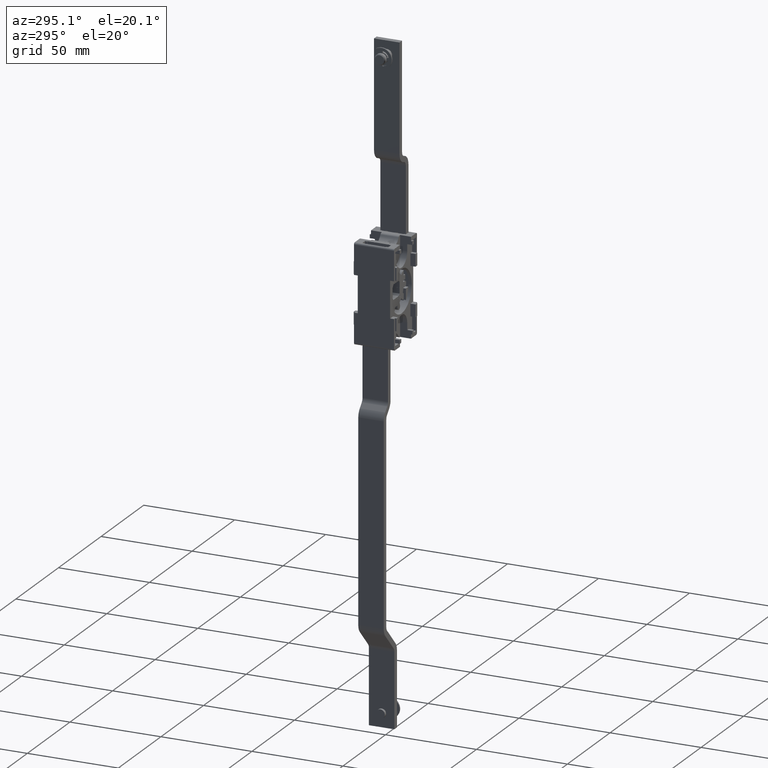
[diagram: clean part render]
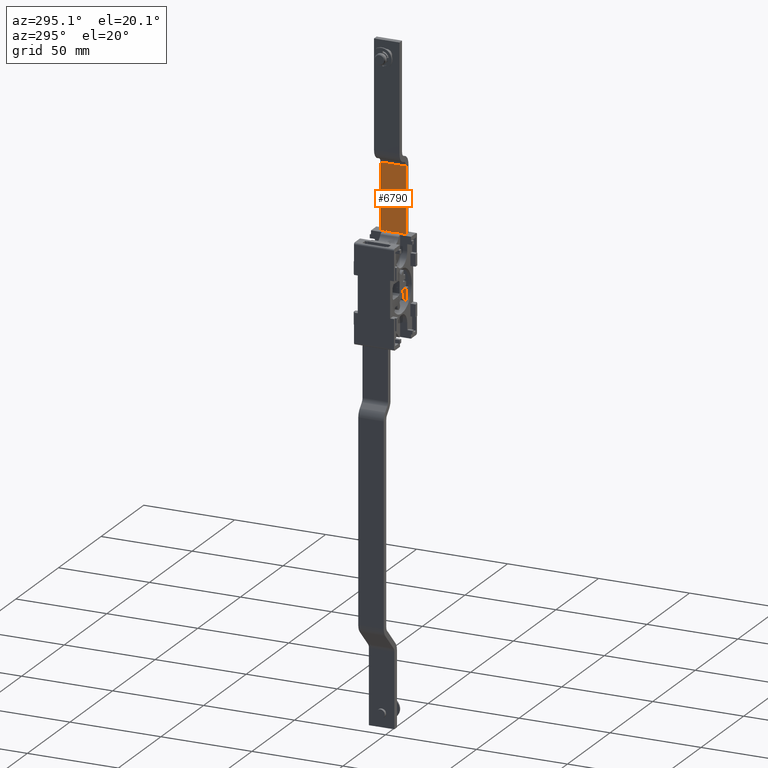
[diagram: same view with one face highlighted and labeled with its STEP entity id]
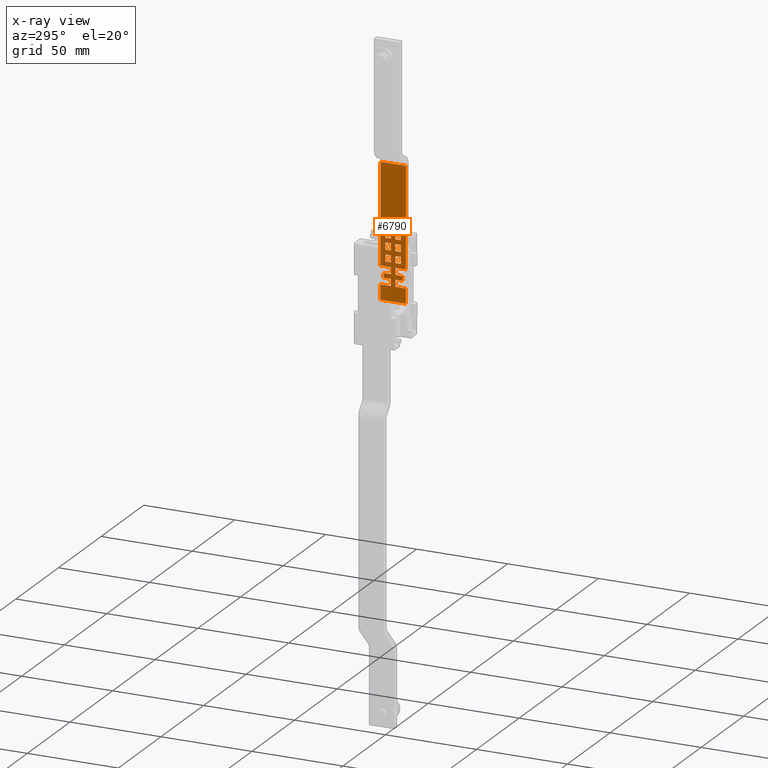
[diagram: x-ray of the same camera — body ghosted, the highlighted face saturated]
A machine part, auxiliary view. The second image highlights one B-rep face of the part: STEP entity #6790.
The next image is the same camera in x-ray: the body ghosted, the highlighted face saturated — about 0% of this face is hidden behind the body in this view.
In plain terms, the highlighted face is a freeform B-spline surface patch.
Its self-contained STEP definition (entity closure, byte-faithful):
#4746=CARTESIAN_POINT('',(8.900000041247779,1.249999999999972,10.660006222166400));
#4747=VERTEX_POINT('',#4746);
#4753=CARTESIAN_POINT('',(8.900000041247800,1.250000000000000,14.460006222166401));
#4754=VERTEX_POINT('',#4753);
#4755=CARTESIAN_POINT('',(8.900000041247800,1.250000000000000,14.460006222166401));
#4756=CARTESIAN_POINT('',(8.900000041247779,1.249999999999972,10.660006222166400));
#4757=QUASI_UNIFORM_CURVE('',1,(#4755,#4756),.UNSPECIFIED.,.F.,.U.);
#4758=EDGE_CURVE('',#4754,#4747,#4757,.T.);
#4781=CARTESIAN_POINT('',(8.900000041247800,4.250000000000000,14.460006222166401));
#4782=VERTEX_POINT('',#4781);
#4783=CARTESIAN_POINT('',(8.900000041247800,4.250000000000000,14.460006222166401));
#4784=CARTESIAN_POINT('',(8.900000041247800,1.250000000000000,14.460006222166401));
#4785=QUASI_UNIFORM_CURVE('',1,(#4783,#4784),.UNSPECIFIED.,.F.,.U.);
#4786=EDGE_CURVE('',#4782,#4754,#4785,.T.);
#4809=CARTESIAN_POINT('',(8.900000041247800,4.250000000000000,10.660006222166400));
#4810=VERTEX_POINT('',#4809);
#4811=CARTESIAN_POINT('',(8.900000041247800,4.250000000000000,10.660006222166400));
#4812=CARTESIAN_POINT('',(8.900000041247800,4.250000000000000,14.460006222166401));
#4813=QUASI_UNIFORM_CURVE('',1,(#4811,#4812),.UNSPECIFIED.,.F.,.U.);
#4814=EDGE_CURVE('',#4810,#4782,#4813,.T.);
#4835=CARTESIAN_POINT('',(8.900000041247779,1.249999999999972,10.660006222166400));
#4836=CARTESIAN_POINT('',(8.900000041247800,4.250000000000000,10.660006222166400));
#4837=QUASI_UNIFORM_CURVE('',1,(#4835,#4836),.UNSPECIFIED.,.F.,.U.);
#4838=EDGE_CURVE('',#4747,#4810,#4837,.T.);
#4858=CARTESIAN_POINT('',(8.900000041247779,-4.250000000000000,10.660006222166400));
#4859=VERTEX_POINT('',#4858);
#4865=CARTESIAN_POINT('',(8.900000041247800,-4.250000000000000,14.460006222166401));
#4866=VERTEX_POINT('',#4865);
#4867=CARTESIAN_POINT('',(8.900000041247779,-4.250000000000000,10.660006222166400));
#4868=CARTESIAN_POINT('',(8.900000041247800,-4.250000000000000,14.460006222166401));
#4869=QUASI_UNIFORM_CURVE('',1,(#4867,#4868),.UNSPECIFIED.,.F.,.U.);
#4870=EDGE_CURVE('',#4859,#4866,#4869,.T.);
#4892=CARTESIAN_POINT('',(8.900000041247800,-1.250000000000000,10.660006222166400));
#4893=VERTEX_POINT('',#4892);
#4899=CARTESIAN_POINT('',(8.900000041247800,-1.250000000000000,10.660006222166400));
#4900=CARTESIAN_POINT('',(8.900000041247779,-4.250000000000000,10.660006222166400));
#4901=QUASI_UNIFORM_CURVE('',1,(#4899,#4900),.UNSPECIFIED.,.F.,.U.);
#4902=EDGE_CURVE('',#4893,#4859,#4901,.T.);
#4920=CARTESIAN_POINT('',(8.900000041247800,-1.250000000000000,14.460006222166401));
#4921=VERTEX_POINT('',#4920);
#4927=CARTESIAN_POINT('',(8.900000041247800,-1.250000000000000,14.460006222166401));
#4928=CARTESIAN_POINT('',(8.900000041247800,-1.250000000000000,10.660006222166400));
#4929=QUASI_UNIFORM_CURVE('',1,(#4927,#4928),.UNSPECIFIED.,.F.,.U.);
#4930=EDGE_CURVE('',#4921,#4893,#4929,.T.);
#4947=CARTESIAN_POINT('',(8.900000041247800,-4.250000000000000,14.460006222166401));
#4948=CARTESIAN_POINT('',(8.900000041247800,-1.250000000000000,14.460006222166401));
#4949=QUASI_UNIFORM_CURVE('',1,(#4947,#4948),.UNSPECIFIED.,.F.,.U.);
#4950=EDGE_CURVE('',#4866,#4921,#4949,.T.);
#4970=CARTESIAN_POINT('',(8.900000041247779,-4.250000000000000,20.740006222166400));
#4971=VERTEX_POINT('',#4970);
#4977=CARTESIAN_POINT('',(8.900000041247800,-1.250000000000000,20.740006222166400));
#4978=VERTEX_POINT('',#4977);
#4979=CARTESIAN_POINT('',(8.900000041247800,-1.250000000000000,20.740006222166400));
#4980=CARTESIAN_POINT('',(8.900000041247779,-4.250000000000000,20.740006222166400));
#4981=QUASI_UNIFORM_CURVE('',1,(#4979,#4980),.UNSPECIFIED.,.F.,.U.);
#4982=EDGE_CURVE('',#4978,#4971,#4981,.T.);
#5005=CARTESIAN_POINT('',(8.900000041247800,-1.250000000000000,16.940006222166399));
#5006=VERTEX_POINT('',#5005);
#5007=CARTESIAN_POINT('',(8.900000041247800,-1.250000000000000,16.940006222166399));
#5008=CARTESIAN_POINT('',(8.900000041247800,-1.250000000000000,20.740006222166400));
#5009=QUASI_UNIFORM_CURVE('',1,(#5007,#5008),.UNSPECIFIED.,.F.,.U.);
#5010=EDGE_CURVE('',#5006,#4978,#5009,.T.);
#5033=CARTESIAN_POINT('',(8.900000041247800,-4.250000000000000,16.940006222166399));
#5034=VERTEX_POINT('',#5033);
#5035=CARTESIAN_POINT('',(8.900000041247800,-4.250000000000000,16.940006222166399));
#5036=CARTESIAN_POINT('',(8.900000041247800,-1.250000000000000,16.940006222166399));
#5037=QUASI_UNIFORM_CURVE('',1,(#5035,#5036),.UNSPECIFIED.,.F.,.U.);
#5038=EDGE_CURVE('',#5034,#5006,#5037,.T.);
#5059=CARTESIAN_POINT('',(8.900000041247779,-4.250000000000000,20.740006222166400));
#5060=CARTESIAN_POINT('',(8.900000041247800,-4.250000000000000,16.940006222166399));
#5061=QUASI_UNIFORM_CURVE('',1,(#5059,#5060),.UNSPECIFIED.,.F.,.U.);
#5062=EDGE_CURVE('',#4971,#5034,#5061,.T.);
#5082=CARTESIAN_POINT('',(8.900000041247779,-4.250000000000000,27.020006222166401));
#5083=VERTEX_POINT('',#5082);
#5089=CARTESIAN_POINT('',(8.900000041247800,-1.250000000000000,27.020006222166401));
#5090=VERTEX_POINT('',#5089);
#5091=CARTESIAN_POINT('',(8.900000041247800,-1.250000000000000,27.020006222166401));
#5092=CARTESIAN_POINT('',(8.900000041247779,-4.250000000000000,27.020006222166401));
#5093=QUASI_UNIFORM_CURVE('',1,(#5091,#5092),.UNSPECIFIED.,.F.,.U.);
#5094=EDGE_CURVE('',#5090,#5083,#5093,.T.);
#5117=CARTESIAN_POINT('',(8.900000041247800,-1.250000000000000,23.220006222166401));
#5118=VERTEX_POINT('',#5117);
#5119=CARTESIAN_POINT('',(8.900000041247800,-1.250000000000000,23.220006222166401));
#5120=CARTESIAN_POINT('',(8.900000041247800,-1.250000000000000,27.020006222166401));
#5121=QUASI_UNIFORM_CURVE('',1,(#5119,#5120),.UNSPECIFIED.,.F.,.U.);
#5122=EDGE_CURVE('',#5118,#5090,#5121,.T.);
#5145=CARTESIAN_POINT('',(8.900000041247800,-4.250000000000000,23.220006222166401));
#5146=VERTEX_POINT('',#5145);
#5147=CARTESIAN_POINT('',(8.900000041247800,-4.250000000000000,23.220006222166401));
#5148=CARTESIAN_POINT('',(8.900000041247800,-1.250000000000000,23.220006222166401));
#5149=QUASI_UNIFORM_CURVE('',1,(#5147,#5148),.UNSPECIFIED.,.F.,.U.);
#5150=EDGE_CURVE('',#5146,#5118,#5149,.T.);
#5171=CARTESIAN_POINT('',(8.900000041247779,-4.250000000000000,27.020006222166401));
#5172=CARTESIAN_POINT('',(8.900000041247800,-4.250000000000000,23.220006222166401));
#5173=QUASI_UNIFORM_CURVE('',1,(#5171,#5172),.UNSPECIFIED.,.F.,.U.);
#5174=EDGE_CURVE('',#5083,#5146,#5173,.T.);
#5194=CARTESIAN_POINT('',(8.900000041247779,1.250000000000084,27.020006222166401));
#5195=VERTEX_POINT('',#5194);
#5201=CARTESIAN_POINT('',(8.900000041247800,4.250000000000000,27.020006222166401));
#5202=VERTEX_POINT('',#5201);
#5203=CARTESIAN_POINT('',(8.900000041247779,1.250000000000084,27.020006222166401));
#5204=CARTESIAN_POINT('',(8.900000041247800,4.250000000000000,27.020006222166401));
#5205=QUASI_UNIFORM_CURVE('',1,(#5203,#5204),.UNSPECIFIED.,.F.,.U.);
#5206=EDGE_CURVE('',#5195,#5202,#5205,.T.);
#5228=CARTESIAN_POINT('',(8.900000041247800,1.250000000000000,23.220006222166401));
#5229=VERTEX_POINT('',#5228);
#5235=CARTESIAN_POINT('',(8.900000041247800,1.250000000000000,23.220006222166401));
#5236=CARTESIAN_POINT('',(8.900000041247779,1.250000000000084,27.020006222166401));
#5237=QUASI_UNIFORM_CURVE('',1,(#5235,#5236),.UNSPECIFIED.,.F.,.U.);
#5238=EDGE_CURVE('',#5229,#5195,#5237,.T.);
#5256=CARTESIAN_POINT('',(8.900000041247800,4.250000000000000,23.220006222166401));
#5257=VERTEX_POINT('',#5256);
#5263=CARTESIAN_POINT('',(8.900000041247800,4.250000000000000,23.220006222166401));
#5264=CARTESIAN_POINT('',(8.900000041247800,1.250000000000000,23.220006222166401));
#5265=QUASI_UNIFORM_CURVE('',1,(#5263,#5264),.UNSPECIFIED.,.F.,.U.);
#5266=EDGE_CURVE('',#5257,#5229,#5265,.T.);
#5283=CARTESIAN_POINT('',(8.900000041247800,4.250000000000000,27.020006222166401));
#5284=CARTESIAN_POINT('',(8.900000041247800,4.250000000000000,23.220006222166401));
#5285=QUASI_UNIFORM_CURVE('',1,(#5283,#5284),.UNSPECIFIED.,.F.,.U.);
#5286=EDGE_CURVE('',#5202,#5257,#5285,.T.);
#5306=CARTESIAN_POINT('',(8.900000041247779,4.250000000000000,16.940006222166399));
#5307=VERTEX_POINT('',#5306);
#5313=CARTESIAN_POINT('',(8.900000041247800,1.250000000000000,16.940006222166399));
#5314=VERTEX_POINT('',#5313);
#5315=CARTESIAN_POINT('',(8.900000041247779,4.250000000000000,16.940006222166399));
#5316=CARTESIAN_POINT('',(8.900000041247800,1.250000000000000,16.940006222166399));
#5317=QUASI_UNIFORM_CURVE('',1,(#5315,#5316),.UNSPECIFIED.,.F.,.U.);
#5318=EDGE_CURVE('',#5307,#5314,#5317,.T.);
#5340=CARTESIAN_POINT('',(8.900000041247800,4.250000000000000,20.740006222166400));
#5341=VERTEX_POINT('',#5340);
#5347=CARTESIAN_POINT('',(8.900000041247800,4.250000000000000,20.740006222166400));
#5348=CARTESIAN_POINT('',(8.900000041247779,4.250000000000000,16.940006222166399));
#5349=QUASI_UNIFORM_CURVE('',1,(#5347,#5348),.UNSPECIFIED.,.F.,.U.);
#5350=EDGE_CURVE('',#5341,#5307,#5349,.T.);
#5368=CARTESIAN_POINT('',(8.900000041247800,1.250000000000000,20.740006222166400));
#5369=VERTEX_POINT('',#5368);
#5375=CARTESIAN_POINT('',(8.900000041247800,1.250000000000000,20.740006222166400));
#5376=CARTESIAN_POINT('',(8.900000041247800,4.250000000000000,20.740006222166400));
#5377=QUASI_UNIFORM_CURVE('',1,(#5375,#5376),.UNSPECIFIED.,.F.,.U.);
#5378=EDGE_CURVE('',#5369,#5341,#5377,.T.);
#5395=CARTESIAN_POINT('',(8.900000041247800,1.250000000000000,16.940006222166399));
#5396=CARTESIAN_POINT('',(8.900000041247800,1.250000000000000,20.740006222166400));
#5397=QUASI_UNIFORM_CURVE('',1,(#5395,#5396),.UNSPECIFIED.,.F.,.U.);
#5398=EDGE_CURVE('',#5314,#5369,#5397,.T.);
#5418=CARTESIAN_POINT('',(8.900000041247800,-1.250000000000000,-1.899993777833595));
#5419=VERTEX_POINT('',#5418);
#5425=CARTESIAN_POINT('',(8.900000041247779,-7.000000332482220,-1.899993777833595));
#5426=VERTEX_POINT('',#5425);
#5427=CARTESIAN_POINT('',(8.900000041247800,-1.250000000000000,-1.899993777833595));
#5428=CARTESIAN_POINT('',(8.900000041247779,-7.000000332482220,-1.899993777833595));
#5429=QUASI_UNIFORM_CURVE('',1,(#5427,#5428),.UNSPECIFIED.,.F.,.U.);
#5430=EDGE_CURVE('',#5419,#5426,#5429,.T.);
#5452=CARTESIAN_POINT('',(8.900000041247800,-1.250000000000000,1.900006222166405));
#5453=VERTEX_POINT('',#5452);
#5459=CARTESIAN_POINT('',(8.900000041247800,-1.250000000000000,1.900006222166405));
#5460=CARTESIAN_POINT('',(8.900000041247800,-1.250000000000000,-1.899993777833595));
#5461=QUASI_UNIFORM_CURVE('',1,(#5459,#5460),.UNSPECIFIED.,.F.,.U.);
#5462=EDGE_CURVE('',#5453,#5419,#5461,.T.);
#5480=CARTESIAN_POINT('',(8.900000041247800,-5.250000000000000,1.900006222166405));
#5481=VERTEX_POINT('',#5480);
#5487=CARTESIAN_POINT('',(8.900000041247800,-5.250000000000000,1.900006222166405));
#5488=CARTESIAN_POINT('',(8.900000041247800,-1.250000000000000,1.900006222166405));
#5489=QUASI_UNIFORM_CURVE('',1,(#5487,#5488),.UNSPECIFIED.,.F.,.U.);
#5490=EDGE_CURVE('',#5481,#5453,#5489,.T.);
#5508=CARTESIAN_POINT('',(8.900000041247800,-5.250000000000000,4.380006222166405));
#5509=VERTEX_POINT('',#5508);
#5515=CARTESIAN_POINT('',(8.900000041247800,-5.250000000000000,4.380006222166405));
#5516=CARTESIAN_POINT('',(8.900000041247800,-5.250000000000000,1.900006222166405));
#5517=QUASI_UNIFORM_CURVE('',1,(#5515,#5516),.UNSPECIFIED.,.F.,.U.);
#5518=EDGE_CURVE('',#5509,#5481,#5517,.T.);
#5536=CARTESIAN_POINT('',(8.900000041247800,-1.250000000000000,4.380006222166405));
#5537=VERTEX_POINT('',#5536);
#5543=CARTESIAN_POINT('',(8.900000041247800,-1.250000000000000,4.380006222166405));
#5544=CARTESIAN_POINT('',(8.900000041247800,-5.250000000000000,4.380006222166405));
#5545=QUASI_UNIFORM_CURVE('',1,(#5543,#5544),.UNSPECIFIED.,.F.,.U.);
#5546=EDGE_CURVE('',#5537,#5509,#5545,.T.);
#5564=CARTESIAN_POINT('',(8.900000041247800,-1.250000000000000,8.180006222166409));
#5565=VERTEX_POINT('',#5564);
#5571=CARTESIAN_POINT('',(8.900000041247800,-1.250000000000000,8.180006222166409));
#5572=CARTESIAN_POINT('',(8.900000041247800,-1.250000000000000,4.380006222166405));
#5573=QUASI_UNIFORM_CURVE('',1,(#5571,#5572),.UNSPECIFIED.,.F.,.U.);
#5574=EDGE_CURVE('',#5565,#5537,#5573,.T.);
#5592=CARTESIAN_POINT('',(8.900000041247800,-7.000000332482220,8.180006222166409));
#5593=VERTEX_POINT('',#5592);
#5599=CARTESIAN_POINT('',(8.900000041247800,-7.000000332482220,8.180006222166409));
#5600=CARTESIAN_POINT('',(8.900000041247800,-1.250000000000000,8.180006222166409));
#5601=QUASI_UNIFORM_CURVE('',1,(#5599,#5600),.UNSPECIFIED.,.F.,.U.);
#5602=EDGE_CURVE('',#5593,#5565,#5601,.T.);
#5622=CARTESIAN_POINT('',(8.900000041247800,1.250000000000000,4.380006222166405));
#5623=VERTEX_POINT('',#5622);
#5629=CARTESIAN_POINT('',(8.900000041247800,1.250000000000000,8.180006222166409));
#5630=VERTEX_POINT('',#5629);
#5631=CARTESIAN_POINT('',(8.900000041247800,1.250000000000000,4.380006222166405));
#5632=CARTESIAN_POINT('',(8.900000041247800,1.250000000000000,8.180006222166409));
#5633=QUASI_UNIFORM_CURVE('',1,(#5631,#5632),.UNSPECIFIED.,.F.,.U.);
#5634=EDGE_CURVE('',#5623,#5630,#5633,.T.);
#5656=CARTESIAN_POINT('',(8.900000041247800,5.250000000000000,4.380006222166400));
#5657=VERTEX_POINT('',#5656);
#5663=CARTESIAN_POINT('',(8.900000041247800,5.250000000000000,4.380006222166400));
#5664=CARTESIAN_POINT('',(8.900000041247800,1.250000000000000,4.380006222166405));
#5665=QUASI_UNIFORM_CURVE('',1,(#5663,#5664),.UNSPECIFIED.,.F.,.U.);
#5666=EDGE_CURVE('',#5657,#5623,#5665,.T.);
#5684=CARTESIAN_POINT('',(8.900000041247800,5.250000000000000,1.900006222166405));
#5685=VERTEX_POINT('',#5684);
#5691=CARTESIAN_POINT('',(8.900000041247800,5.250000000000000,1.900006222166405));
#5692=CARTESIAN_POINT('',(8.900000041247800,5.250000000000000,4.380006222166400));
#5693=QUASI_UNIFORM_CURVE('',1,(#5691,#5692),.UNSPECIFIED.,.F.,.U.);
#5694=EDGE_CURVE('',#5685,#5657,#5693,.T.);
#5712=CARTESIAN_POINT('',(8.900000041247800,1.250000000000000,1.900006222166405));
#5713=VERTEX_POINT('',#5712);
#5719=CARTESIAN_POINT('',(8.900000041247800,1.250000000000000,1.900006222166405));
#5720=CARTESIAN_POINT('',(8.900000041247800,5.250000000000000,1.900006222166405));
#5721=QUASI_UNIFORM_CURVE('',1,(#5719,#5720),.UNSPECIFIED.,.F.,.U.);
#5722=EDGE_CURVE('',#5713,#5685,#5721,.T.);
#5740=CARTESIAN_POINT('',(8.900000041247800,1.250000000000000,-1.899993777833595));
#5741=VERTEX_POINT('',#5740);
#5747=CARTESIAN_POINT('',(8.900000041247800,1.250000000000000,-1.899993777833595));
#5748=CARTESIAN_POINT('',(8.900000041247800,1.250000000000000,1.900006222166405));
#5749=QUASI_UNIFORM_CURVE('',1,(#5747,#5748),.UNSPECIFIED.,.F.,.U.);
#5750=EDGE_CURVE('',#5741,#5713,#5749,.T.);
#5768=CARTESIAN_POINT('',(8.900000041247800,7.000000332482220,-1.899993777833595));
#5769=VERTEX_POINT('',#5768);
#5775=CARTESIAN_POINT('',(8.900000041247800,7.000000332482220,-1.899993777833595));
#5776=CARTESIAN_POINT('',(8.900000041247800,1.250000000000000,-1.899993777833595));
#5777=QUASI_UNIFORM_CURVE('',1,(#5775,#5776),.UNSPECIFIED.,.F.,.U.);
#5778=EDGE_CURVE('',#5769,#5741,#5777,.T.);
#5797=CARTESIAN_POINT('',(8.900000041247800,7.000000332482220,8.180006222166409));
#5798=VERTEX_POINT('',#5797);
#5799=CARTESIAN_POINT('',(8.900000041247800,1.250000000000000,8.180006222166409));
#5800=CARTESIAN_POINT('',(8.900000041247800,7.000000332482220,8.180006222166409));
#5801=QUASI_UNIFORM_CURVE('',1,(#5799,#5800),.UNSPECIFIED.,.F.,.U.);
#5802=EDGE_CURVE('',#5630,#5798,#5801,.T.);
#6354=CARTESIAN_POINT('',(8.900000041247880,-7.000000332482269,63.041963102782802));
#6355=VERTEX_POINT('',#6354);
#6370=CARTESIAN_POINT('',(8.900000041247880,7.000000332482050,63.041963102782802));
#6371=VERTEX_POINT('',#6370);
#6385=CARTESIAN_POINT('',(8.900000041247880,7.000000332482050,63.041963102782802));
#6386=CARTESIAN_POINT('',(8.900000041247880,-7.000000332482269,63.041963102782802));
#6387=QUASI_UNIFORM_CURVE('',1,(#6385,#6386),.UNSPECIFIED.,.F.,.U.);
#6388=EDGE_CURVE('',#6371,#6355,#6387,.T.);
#6398=CARTESIAN_POINT('',(8.900000041247779,-7.000000332482269,-9.999993777833540));
#6399=VERTEX_POINT('',#6398);
#6407=CARTESIAN_POINT('',(8.900000041247779,7.000000332482050,-9.999993777833540));
#6408=VERTEX_POINT('',#6407);
#6409=CARTESIAN_POINT('',(8.900000041247779,7.000000332482050,-9.999993777833540));
#6410=CARTESIAN_POINT('',(8.900000041247779,-7.000000332482269,-9.999993777833540));
#6411=QUASI_UNIFORM_CURVE('',1,(#6409,#6410),.UNSPECIFIED.,.F.,.U.);
#6412=EDGE_CURVE('',#6408,#6399,#6411,.T.);
#6647=CARTESIAN_POINT('',(8.900000041247800,7.000000332482220,-1.899993777833595));
#6648=CARTESIAN_POINT('',(8.900000041247779,7.000000332482050,-9.999993777833540));
#6649=QUASI_UNIFORM_CURVE('',1,(#6647,#6648),.UNSPECIFIED.,.F.,.U.);
#6650=EDGE_CURVE('',#5769,#6408,#6649,.T.);
#6661=CARTESIAN_POINT('',(8.900000041247880,7.000000332482050,63.041963102782802));
#6662=CARTESIAN_POINT('',(8.900000041247800,7.000000332482220,8.180006222166409));
#6663=QUASI_UNIFORM_CURVE('',1,(#6661,#6662),.UNSPECIFIED.,.F.,.U.);
#6664=EDGE_CURVE('',#6371,#5798,#6663,.T.);
#6692=CARTESIAN_POINT('',(8.900000041247779,-7.000000332482220,-1.899993777833595));
#6693=CARTESIAN_POINT('',(8.900000041247779,-7.000000332482269,-9.999993777833540));
#6694=QUASI_UNIFORM_CURVE('',1,(#6692,#6693),.UNSPECIFIED.,.F.,.U.);
#6695=EDGE_CURVE('',#5426,#6399,#6694,.T.);
#6706=CARTESIAN_POINT('',(8.900000041247880,-7.000000332482269,63.041963102782802));
#6707=CARTESIAN_POINT('',(8.900000041247800,-7.000000332482220,8.180006222166409));
#6708=QUASI_UNIFORM_CURVE('',1,(#6706,#6707),.UNSPECIFIED.,.F.,.U.);
#6709=EDGE_CURVE('',#6355,#5593,#6708,.T.);
#6727=CARTESIAN_POINT('',(8.900000041247779,-7.699300469984519,-13.648439121493670));
#6728=CARTESIAN_POINT('',(8.900000041247779,-7.699300469984519,66.690405181213009));
#6729=CARTESIAN_POINT('',(8.900000041247779,7.699300720323989,-13.648439121493670));
#6730=CARTESIAN_POINT('',(8.900000041247779,7.699300720323989,66.690405181213009));
#6731=B_SPLINE_SURFACE_WITH_KNOTS('',1,1,((#6727,#6729),(#6728,#6730)),.UNSPECIFIED.,.F.,.F.,.U.,(2,2),(2,2),(0.0,80.338844302706676),(0.0,15.398601190308510),.UNSPECIFIED.);
#6732=ORIENTED_EDGE('',*,*,#5574,.F.);
#6733=ORIENTED_EDGE('',*,*,#5602,.F.);
#6734=ORIENTED_EDGE('',*,*,#6709,.F.);
#6735=ORIENTED_EDGE('',*,*,#6388,.F.);
#6736=ORIENTED_EDGE('',*,*,#6664,.T.);
#6737=ORIENTED_EDGE('',*,*,#5802,.F.);
#6738=ORIENTED_EDGE('',*,*,#5634,.F.);
#6739=ORIENTED_EDGE('',*,*,#5666,.F.);
#6740=ORIENTED_EDGE('',*,*,#5694,.F.);
#6741=ORIENTED_EDGE('',*,*,#5722,.F.);
#6742=ORIENTED_EDGE('',*,*,#5750,.F.);
#6743=ORIENTED_EDGE('',*,*,#5778,.F.);
#6744=ORIENTED_EDGE('',*,*,#6650,.T.);
#6745=ORIENTED_EDGE('',*,*,#6412,.T.);
#6746=ORIENTED_EDGE('',*,*,#6695,.F.);
#6747=ORIENTED_EDGE('',*,*,#5430,.F.);
#6748=ORIENTED_EDGE('',*,*,#5462,.F.);
#6749=ORIENTED_EDGE('',*,*,#5490,.F.);
#6750=ORIENTED_EDGE('',*,*,#5518,.F.);
#6751=ORIENTED_EDGE('',*,*,#5546,.F.);
#6752=EDGE_LOOP('',(#6732,#6733,#6734,#6735,#6736,#6737,#6738,#6739,#6740,#6741,#6742,#6743,#6744,#6745,#6746,#6747,#6748,#6749,#6750,#6751));
#6753=FACE_OUTER_BOUND('',#6752,.T.);
#6754=ORIENTED_EDGE('',*,*,#5266,.F.);
#6755=ORIENTED_EDGE('',*,*,#5286,.F.);
#6756=ORIENTED_EDGE('',*,*,#5206,.F.);
#6757=ORIENTED_EDGE('',*,*,#5238,.F.);
#6758=EDGE_LOOP('',(#6754,#6755,#6756,#6757));
#6759=FACE_BOUND('',#6758,.T.);
#6760=ORIENTED_EDGE('',*,*,#4838,.T.);
#6761=ORIENTED_EDGE('',*,*,#4814,.T.);
#6762=ORIENTED_EDGE('',*,*,#4786,.T.);
#6763=ORIENTED_EDGE('',*,*,#4758,.T.);
#6764=EDGE_LOOP('',(#6760,#6761,#6762,#6763));
#6765=FACE_BOUND('',#6764,.T.);
#6766=ORIENTED_EDGE('',*,*,#5378,.F.);
#6767=ORIENTED_EDGE('',*,*,#5398,.F.);
#6768=ORIENTED_EDGE('',*,*,#5318,.F.);
#6769=ORIENTED_EDGE('',*,*,#5350,.F.);
#6770=EDGE_LOOP('',(#6766,#6767,#6768,#6769));
#6771=FACE_BOUND('',#6770,.T.);
#6772=ORIENTED_EDGE('',*,*,#5174,.T.);
#6773=ORIENTED_EDGE('',*,*,#5150,.T.);
#6774=ORIENTED_EDGE('',*,*,#5122,.T.);
#6775=ORIENTED_EDGE('',*,*,#5094,.T.);
#6776=EDGE_LOOP('',(#6772,#6773,#6774,#6775));
#6777=FACE_BOUND('',#6776,.T.);
#6778=ORIENTED_EDGE('',*,*,#5062,.T.);
#6779=ORIENTED_EDGE('',*,*,#5038,.T.);
#6780=ORIENTED_EDGE('',*,*,#5010,.T.);
#6781=ORIENTED_EDGE('',*,*,#4982,.T.);
#6782=EDGE_LOOP('',(#6778,#6779,#6780,#6781));
#6783=FACE_BOUND('',#6782,.T.);
#6784=ORIENTED_EDGE('',*,*,#4930,.F.);
#6785=ORIENTED_EDGE('',*,*,#4950,.F.);
#6786=ORIENTED_EDGE('',*,*,#4870,.F.);
#6787=ORIENTED_EDGE('',*,*,#4902,.F.);
#6788=EDGE_LOOP('',(#6784,#6785,#6786,#6787));
#6789=FACE_BOUND('',#6788,.T.);
#6790=ADVANCED_FACE('',(#6753,#6759,#6765,#6771,#6777,#6783,#6789),#6731,.T.);